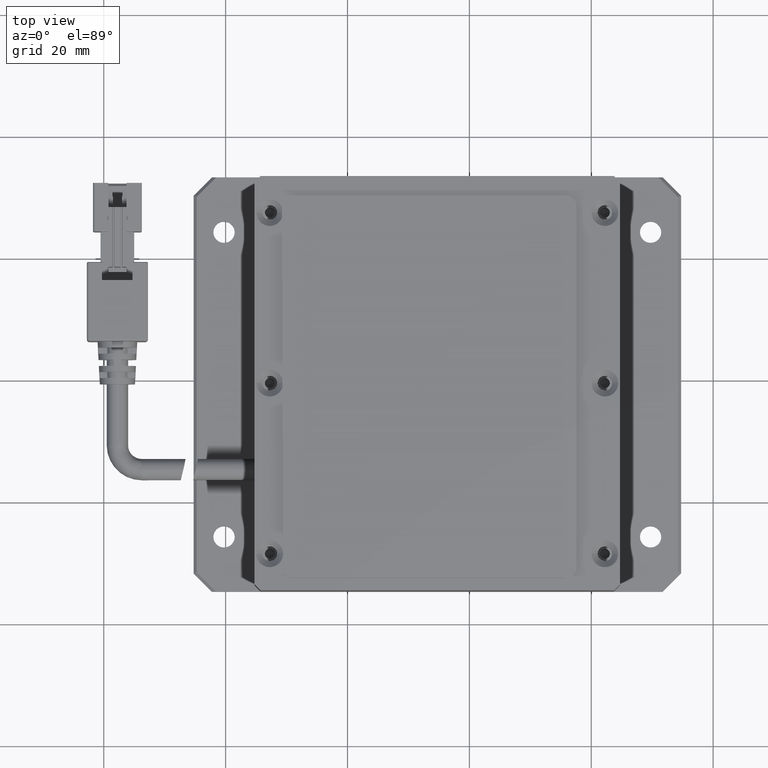
[diagram: clean part render]
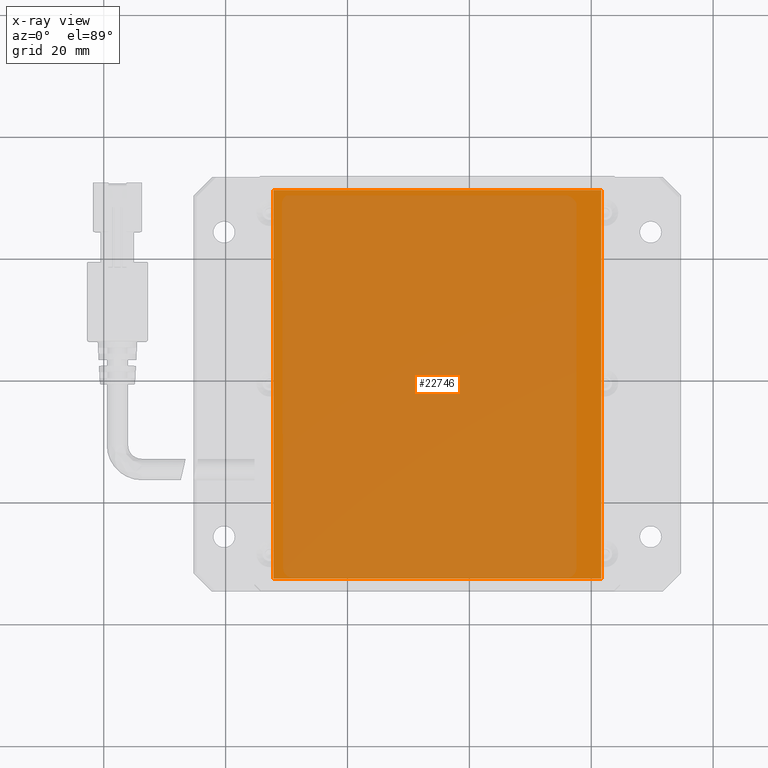
[diagram: x-ray — body ghosted, one internal face saturated and labeled with its STEP entity id]
A machine part, top view, then the same camera in x-ray: the body is ghosted and one INTERNAL B-rep face — a face not visible from any outside direction — is saturated and labeled: STEP entity #22746.
In plain terms, the highlighted planar face has unit normal (-0, 0, 1).
Its self-contained STEP definition (entity closure, byte-faithful):
#313 = CARTESIAN_POINT ( 'NONE',  ( -32.15773195876286600, 31.25089728904165300, 0.2999999999954523500 ) ) ;
#2071 = VERTEX_POINT ( 'NONE', #23001 ) ;
#2075 = CARTESIAN_POINT ( 'NONE',  ( -32.15773195876286600, -32.54910271095834400, 0.2999999999954523500 ) ) ;
#2147 = CARTESIAN_POINT ( 'NONE',  ( -32.15773195876286600, -32.54910271095834400, 0.2999999999954523500 ) ) ;
#4757 = LINE ( 'NONE', #33558, #20056 ) ;
#5079 = ORIENTED_EDGE ( 'NONE', *, *, #5224, .F. ) ;
#5224 = EDGE_CURVE ( 'NONE', #19620, #2071, #22686, .T. ) ;
#7815 = LINE ( 'NONE', #2075, #31402 ) ;
#8407 = ORIENTED_EDGE ( 'NONE', *, *, #25686, .F. ) ;
#9932 = ORIENTED_EDGE ( 'NONE', *, *, #16248, .F. ) ;
#12409 = CARTESIAN_POINT ( 'NONE',  ( 21.64226804123713100, 31.25089728904165300, 0.2999999999954523500 ) ) ;
#14173 = CARTESIAN_POINT ( 'NONE',  ( -32.15773195876286600, -32.54910271095834400, 0.2999999999954523500 ) ) ;
#15912 = EDGE_CURVE ( 'NONE', #18692, #19620, #21698, .T. ) ;
#16248 = EDGE_CURVE ( 'NONE', #2071, #26835, #7815, .T. ) ;
#17132 = PLANE ( 'NONE',  #24046 ) ;
#17260 = DIRECTION ( 'NONE',  ( 1.000000000000000000, 0.0000000000000000000, 0.0000000000000000000 ) ) ;
#18499 = CARTESIAN_POINT ( 'NONE',  ( -32.15773195876286600, 31.25089728904165300, 0.2999999999954523500 ) ) ;
#18662 = DIRECTION ( 'NONE',  ( -1.000000000000000000, -0.0000000000000000000, -0.0000000000000000000 ) ) ;
#18692 = VERTEX_POINT ( 'NONE', #12409 ) ;
#19620 = VERTEX_POINT ( 'NONE', #18499 ) ;
#20056 = VECTOR ( 'NONE', #36605, 1000.000000000000000 ) ;
#20383 = DIRECTION ( 'NONE',  ( 1.000000000000000000, 0.0000000000000000000, 0.0000000000000000000 ) ) ;
#21698 = LINE ( 'NONE', #313, #29922 ) ;
#22686 = LINE ( 'NONE', #2147, #38588 ) ;
#22746 = ADVANCED_FACE ( 'NONE', ( #24504 ), #17132, .F. ) ;
#23001 = CARTESIAN_POINT ( 'NONE',  ( -32.15773195876286600, -32.54910271095834400, 0.2999999999954523500 ) ) ;
#23577 = DIRECTION ( 'NONE',  ( -0.0000000000000000000, -1.000000000000000000, 0.0000000000000000000 ) ) ;
#24046 = AXIS2_PLACEMENT_3D ( 'NONE', #14173, #35748, #17260 ) ;
#24504 = FACE_OUTER_BOUND ( 'NONE', #31056, .T. ) ;
#25686 = EDGE_CURVE ( 'NONE', #26835, #18692, #4757, .T. ) ;
#26835 = VERTEX_POINT ( 'NONE', #28163 ) ;
#28163 = CARTESIAN_POINT ( 'NONE',  ( 21.64226804123713100, -32.54910271095834400, 0.2999999999954523500 ) ) ;
#29922 = VECTOR ( 'NONE', #18662, 1000.000000000000000 ) ;
#30645 = ORIENTED_EDGE ( 'NONE', *, *, #15912, .F. ) ;
#31056 = EDGE_LOOP ( 'NONE', ( #30645, #8407, #9932, #5079 ) ) ;
#31402 = VECTOR ( 'NONE', #20383, 1000.000000000000000 ) ;
#33558 = CARTESIAN_POINT ( 'NONE',  ( 21.64226804123713100, -32.54910271095834400, 0.2999999999954523500 ) ) ;
#35748 = DIRECTION ( 'NONE',  ( -0.0000000000000000000, 0.0000000000000000000, 1.000000000000000000 ) ) ;
#36605 = DIRECTION ( 'NONE',  ( 0.0000000000000000000, 1.000000000000000000, -0.0000000000000000000 ) ) ;
#38588 = VECTOR ( 'NONE', #23577, 1000.000000000000000 ) ;